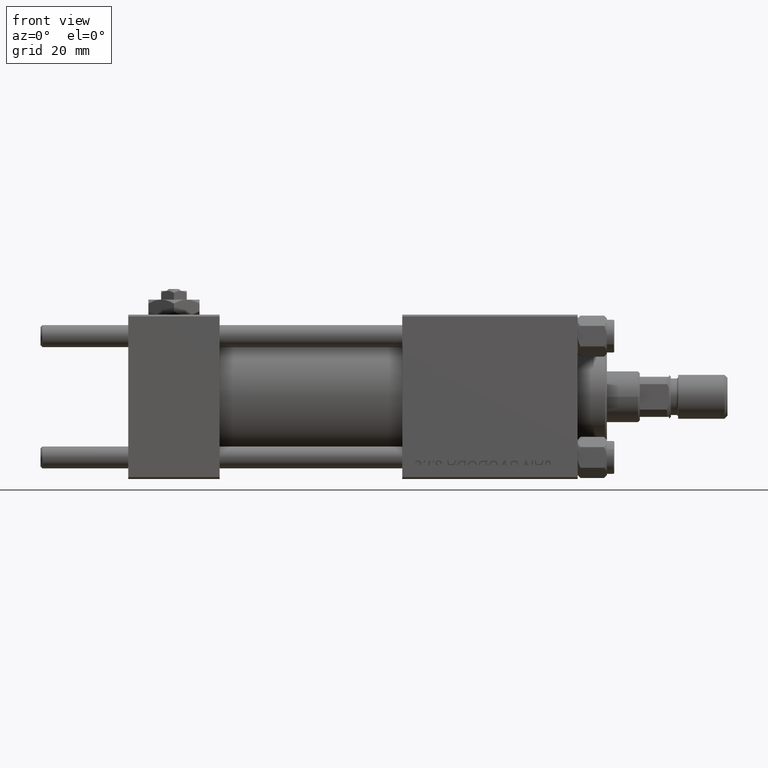
[diagram: clean part render]
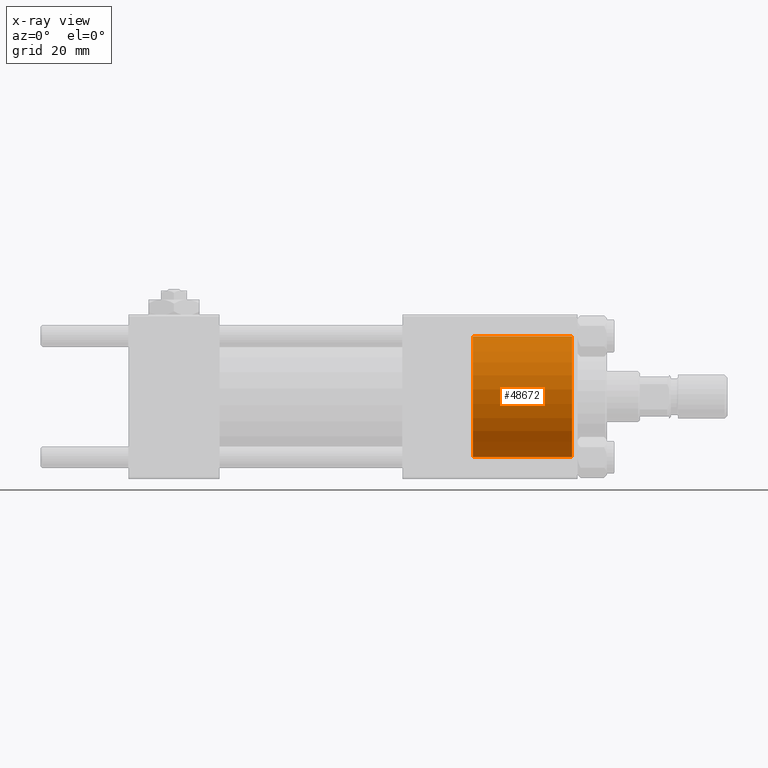
[diagram: x-ray — body ghosted, one internal face saturated and labeled with its STEP entity id]
A machine part, front view, then the same camera in x-ray: the body is ghosted and one INTERNAL B-rep face — a face not visible from any outside direction — is saturated and labeled: STEP entity #48672.
In plain terms, the highlighted cylindrical surface (partial cylindrical patch) has radius 16.5 mm, axis along (1, 0, 0).
Its self-contained STEP definition (entity closure, byte-faithful):
#1217 = EDGE_CURVE ( 'NONE', #5673, #13392, #21139, .T. ) ;
#1282 = CARTESIAN_POINT ( 'NONE',  ( 94.30000000000001137, 2.020667218593133100E-15, 16.50000000000000000 ) ) ;
#3037 = EDGE_CURVE ( 'NONE', #35653, #5673, #7062, .T. ) ;
#3149 = EDGE_CURVE ( 'NONE', #35653, #16882, #21566, .T. ) ;
#5673 = VERTEX_POINT ( 'NONE', #47196 ) ;
#7062 = CIRCLE ( 'NONE', #32305, 16.50000000000000000 ) ;
#7912 = CARTESIAN_POINT ( 'NONE',  ( 94.30000000000001137, 0.000000000000000000, 0.000000000000000000 ) ) ;
#8698 = CARTESIAN_POINT ( 'NONE',  ( 121.5000000000000142, 0.000000000000000000, -16.50000000000000000 ) ) ;
#9593 = ORIENTED_EDGE ( 'NONE', *, *, #1217, .F. ) ;
#11343 = DIRECTION ( 'NONE',  ( 0.000000000000000000, 0.000000000000000000, -1.000000000000000000 ) ) ;
#13392 = VERTEX_POINT ( 'NONE', #8698 ) ;
#15416 = VECTOR ( 'NONE', #36920, 1000.000000000000000 ) ;
#16594 = DIRECTION ( 'NONE',  ( 1.000000000000000000, -0.000000000000000000, -0.000000000000000000 ) ) ;
#16882 = VERTEX_POINT ( 'NONE', #44379 ) ;
#16941 = CARTESIAN_POINT ( 'NONE',  ( 94.30000000000001137, 0.000000000000000000, -16.50000000000000000 ) ) ;
#17226 = ORIENTED_EDGE ( 'NONE', *, *, #3037, .F. ) ;
#17313 = DIRECTION ( 'NONE',  ( 0.000000000000000000, 0.000000000000000000, 1.000000000000000000 ) ) ;
#20047 = CIRCLE ( 'NONE', #24252, 16.50000000000000000 ) ;
#20504 = VECTOR ( 'NONE', #16594, 1000.000000000000000 ) ;
#21139 = LINE ( 'NONE', #16941, #15416 ) ;
#21566 = LINE ( 'NONE', #1282, #20504 ) ;
#23981 = DIRECTION ( 'NONE',  ( 1.000000000000000000, 0.000000000000000000, 0.000000000000000000 ) ) ;
#24252 = AXIS2_PLACEMENT_3D ( 'NONE', #26005, #37825, #17313 ) ;
#24581 = EDGE_LOOP ( 'NONE', ( #17226, #49010, #41021, #9593 ) ) ;
#26005 = CARTESIAN_POINT ( 'NONE',  ( 121.5000000000000142, 0.000000000000000000, 0.000000000000000000 ) ) ;
#27199 = EDGE_CURVE ( 'NONE', #16882, #13392, #20047, .T. ) ;
#27813 = CARTESIAN_POINT ( 'NONE',  ( 94.30000000000001137, 0.000000000000000000, 0.000000000000000000 ) ) ;
#28824 = DIRECTION ( 'NONE',  ( 1.000000000000000000, -0.000000000000000000, -0.000000000000000000 ) ) ;
#29107 = CARTESIAN_POINT ( 'NONE',  ( 94.30000000000001137, 2.020667218593133100E-15, 16.50000000000000000 ) ) ;
#32305 = AXIS2_PLACEMENT_3D ( 'NONE', #7912, #23981, #11343 ) ;
#32522 = FACE_OUTER_BOUND ( 'NONE', #24581, .T. ) ;
#35653 = VERTEX_POINT ( 'NONE', #29107 ) ;
#36920 = DIRECTION ( 'NONE',  ( 1.000000000000000000, -0.000000000000000000, -0.000000000000000000 ) ) ;
#37825 = DIRECTION ( 'NONE',  ( 1.000000000000000000, 0.000000000000000000, 0.000000000000000000 ) ) ;
#41021 = ORIENTED_EDGE ( 'NONE', *, *, #27199, .T. ) ;
#44379 = CARTESIAN_POINT ( 'NONE',  ( 121.5000000000000142, 2.020667218593133100E-15, 16.50000000000000000 ) ) ;
#45362 = AXIS2_PLACEMENT_3D ( 'NONE', #27813, #28824, #51749 ) ;
#47196 = CARTESIAN_POINT ( 'NONE',  ( 94.30000000000001137, 0.000000000000000000, -16.50000000000000000 ) ) ;
#48309 = CYLINDRICAL_SURFACE ( 'NONE', #45362, 16.50000000000000000 ) ;
#48672 = ADVANCED_FACE ( 'NONE', ( #32522 ), #48309, .F. ) ;
#49010 = ORIENTED_EDGE ( 'NONE', *, *, #3149, .T. ) ;
#51749 = DIRECTION ( 'NONE',  ( 0.000000000000000000, 0.000000000000000000, -1.000000000000000000 ) ) ;